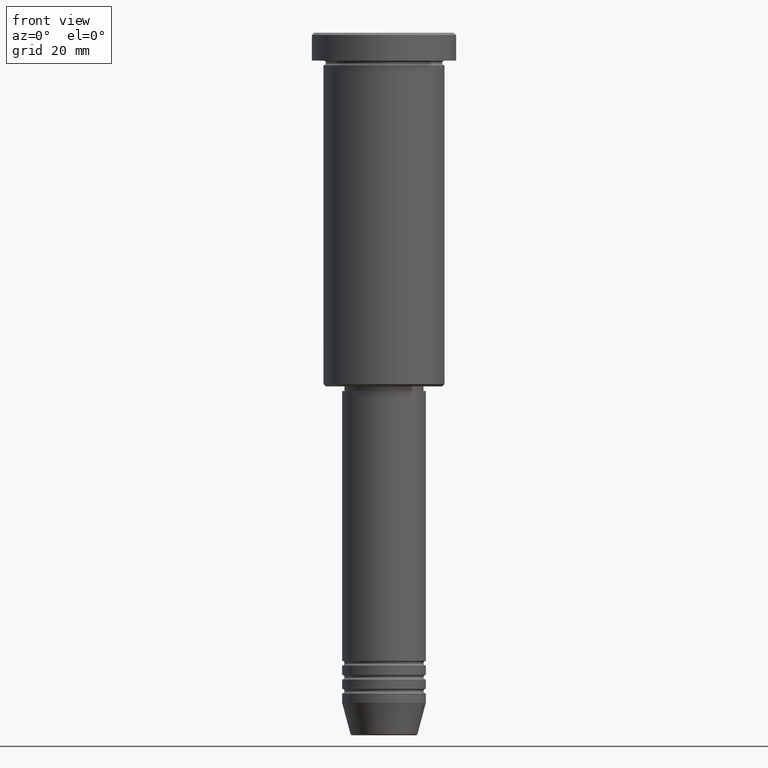
[diagram: clean part render]
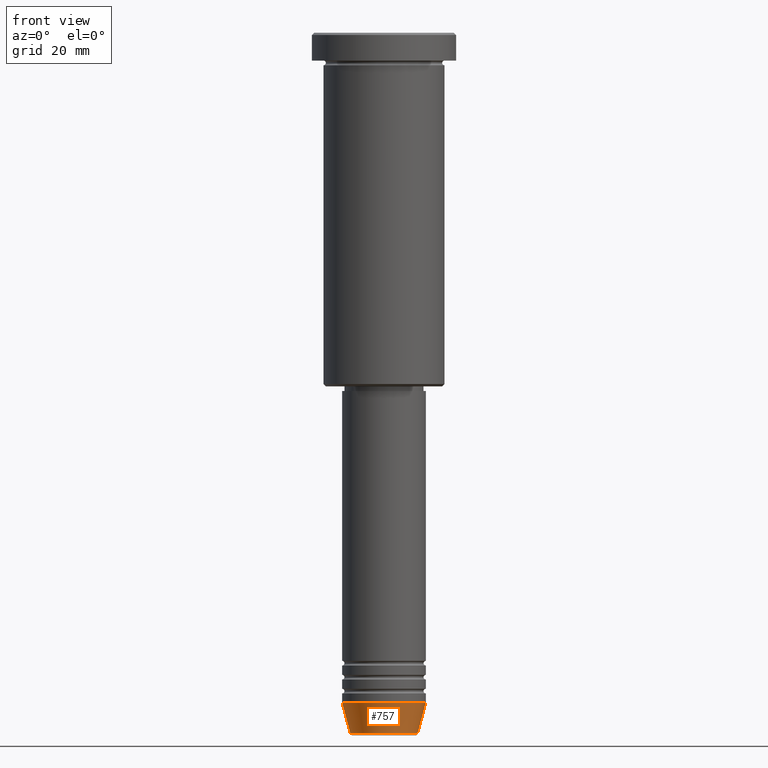
[diagram: same view with one face highlighted and labeled with its STEP entity id]
A machine part, front view. The second image highlights one B-rep face of the part: STEP entity #757.
In plain terms, the highlighted conical surface has half-angle 15 deg.
Its self-contained STEP definition (entity closure, byte-faithful):
#13 = CIRCLE ( 'NONE', #177, 7.223655072137196598 ) ;
#132 = CONICAL_SURFACE ( 'NONE', #277, 9.000000000000000000, 0.2617993877991500740 ) ;
#143 = VERTEX_POINT ( 'NONE', #625 ) ;
#177 = AXIS2_PLACEMENT_3D ( 'NONE', #709, #273, #339 ) ;
#249 = CARTESIAN_POINT ( 'NONE',  ( 9.000000000000000000, 0.000000000000000000, -144.0000000000000000 ) ) ;
#273 = DIRECTION ( 'NONE',  ( -0.000000000000000000, -0.000000000000000000, 1.000000000000000000 ) ) ;
#277 = AXIS2_PLACEMENT_3D ( 'NONE', #821, #656, #993 ) ;
#304 = FACE_OUTER_BOUND ( 'NONE', #449, .T. ) ;
#339 = DIRECTION ( 'NONE',  ( 1.000000000000000000, 0.000000000000000000, 0.000000000000000000 ) ) ;
#351 = VERTEX_POINT ( 'NONE', #662 ) ;
#364 = VERTEX_POINT ( 'NONE', #711 ) ;
#436 = ORIENTED_EDGE ( 'NONE', *, *, #583, .T. ) ;
#449 = EDGE_LOOP ( 'NONE', ( #572, #436, #659, #1009 ) ) ;
#461 = DIRECTION ( 'NONE',  ( 1.000000000000000000, 0.000000000000000000, 0.000000000000000000 ) ) ;
#469 = EDGE_CURVE ( 'NONE', #351, #364, #678, .T. ) ;
#528 = VERTEX_POINT ( 'NONE', #249 ) ;
#572 = ORIENTED_EDGE ( 'NONE', *, *, #469, .F. ) ;
#583 = EDGE_CURVE ( 'NONE', #351, #143, #13, .T. ) ;
#625 = CARTESIAN_POINT ( 'NONE',  ( 7.223655072137196598, 0.000000000000000000, -150.6294095225512422 ) ) ;
#656 = DIRECTION ( 'NONE',  ( -0.000000000000000000, -0.000000000000000000, 1.000000000000000000 ) ) ;
#659 = ORIENTED_EDGE ( 'NONE', *, *, #931, .T. ) ;
#662 = CARTESIAN_POINT ( 'NONE',  ( -7.223655072137197486, 9.934123627281769054E-16, -150.6294095225512422 ) ) ;
#669 = VECTOR ( 'NONE', #1138, 1000.000000000000000 ) ;
#678 = LINE ( 'NONE', #1035, #669 ) ;
#709 = CARTESIAN_POINT ( 'NONE',  ( 0.000000000000000000, 0.000000000000000000, -150.6294095225512422 ) ) ;
#711 = CARTESIAN_POINT ( 'NONE',  ( -9.000000000000000000, 1.102182119232617714E-15, -144.0000000000000000 ) ) ;
#734 = CARTESIAN_POINT ( 'NONE',  ( 0.000000000000000000, 0.000000000000000000, -144.0000000000000000 ) ) ;
#755 = DIRECTION ( 'NONE',  ( 0.2588190451025213501, 0.000000000000000000, 0.9659258262890680902 ) ) ;
#757 = ADVANCED_FACE ( 'NONE', ( #304 ), #132, .T. ) ;
#766 = CARTESIAN_POINT ( 'NONE',  ( 9.000000000000000000, 0.000000000000000000, -144.0000000000000000 ) ) ;
#821 = CARTESIAN_POINT ( 'NONE',  ( 0.000000000000000000, 0.000000000000000000, -144.0000000000000000 ) ) ;
#827 = CIRCLE ( 'NONE', #1173, 9.000000000000000000 ) ;
#839 = LINE ( 'NONE', #766, #1066 ) ;
#931 = EDGE_CURVE ( 'NONE', #143, #528, #839, .T. ) ;
#992 = DIRECTION ( 'NONE',  ( -0.000000000000000000, -0.000000000000000000, 1.000000000000000000 ) ) ;
#993 = DIRECTION ( 'NONE',  ( 1.000000000000000000, 0.000000000000000000, 0.000000000000000000 ) ) ;
#1009 = ORIENTED_EDGE ( 'NONE', *, *, #1148, .F. ) ;
#1035 = CARTESIAN_POINT ( 'NONE',  ( -9.000000000000000000, 1.102182119232617714E-15, -144.0000000000000000 ) ) ;
#1066 = VECTOR ( 'NONE', #755, 1000.000000000000000 ) ;
#1138 = DIRECTION ( 'NONE',  ( -0.2588190451025213501, 3.169619151431772337E-17, 0.9659258262890680902 ) ) ;
#1148 = EDGE_CURVE ( 'NONE', #364, #528, #827, .T. ) ;
#1173 = AXIS2_PLACEMENT_3D ( 'NONE', #734, #992, #461 ) ;